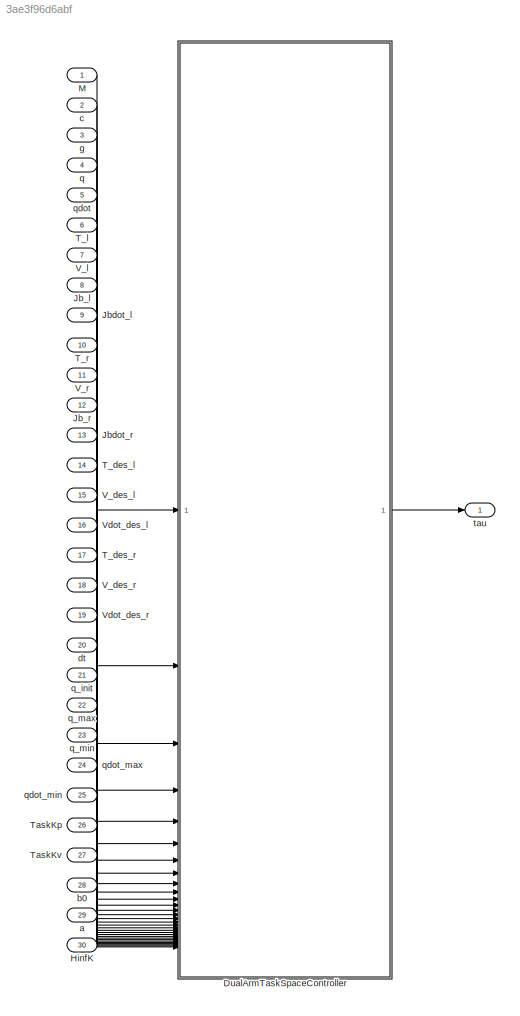
MODEL slx_3ae3f96d6abf
KIND model
CONFIG AbsTol = auto
CONFIG EnableMultiTasking = off
CONFIG FixedStep = 0.001
CONFIG MaxStep = auto
CONFIG MinStep = auto
CONFIG RelTol = 1e-3
CONFIG SampleTimeConstraint = Unconstrained
CONFIG SolverName = FixedStepDiscrete
CONFIG StartTime = 0.0
CONFIG StopTime = Inf
WORKSPACE source: mxarray member
WORKSPACE robot: robotics.RigidBodyTree (value not decoded)
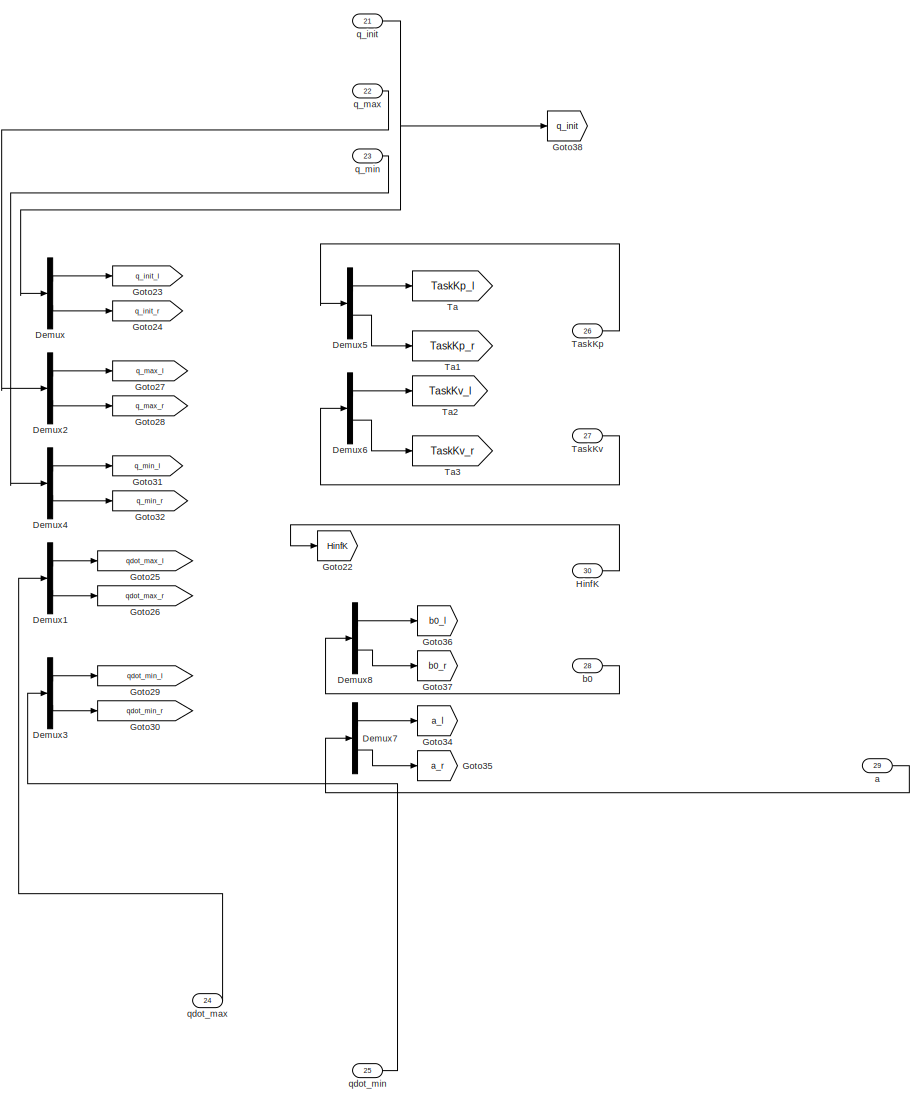
[diagram: DualArmTaskSpaceController - part 1/5, top right region]
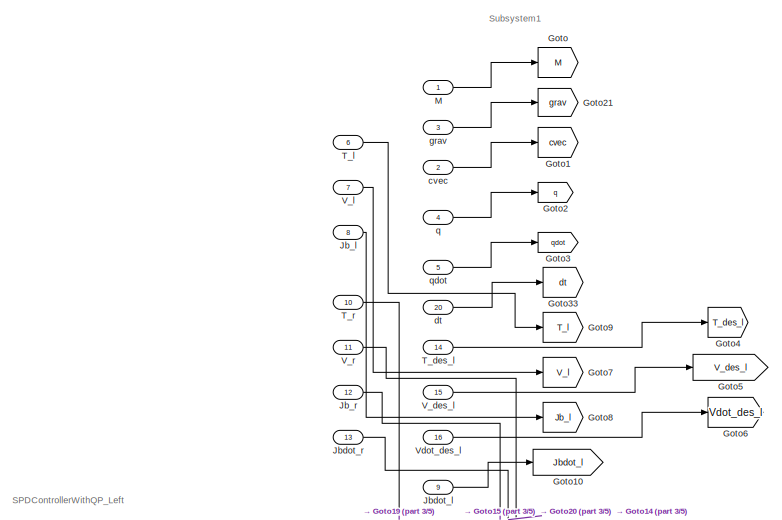
[diagram: DualArmTaskSpaceController - part 2/5, top left region]
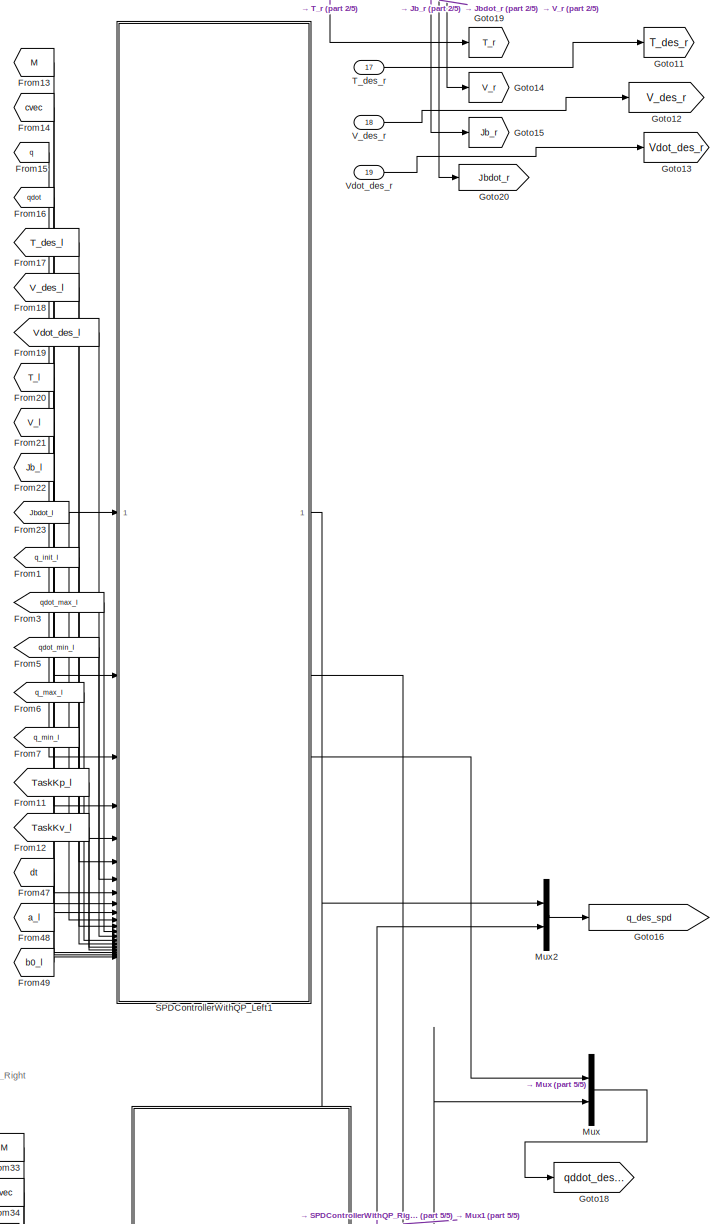
[diagram: DualArmTaskSpaceController - part 3/5, middle left region]
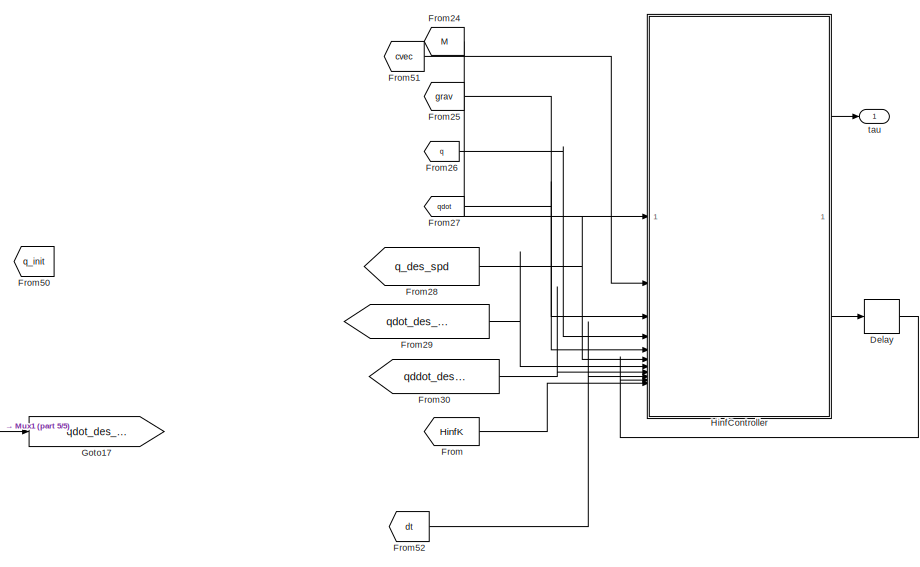
[diagram: DualArmTaskSpaceController - part 4/5, bottom right region]
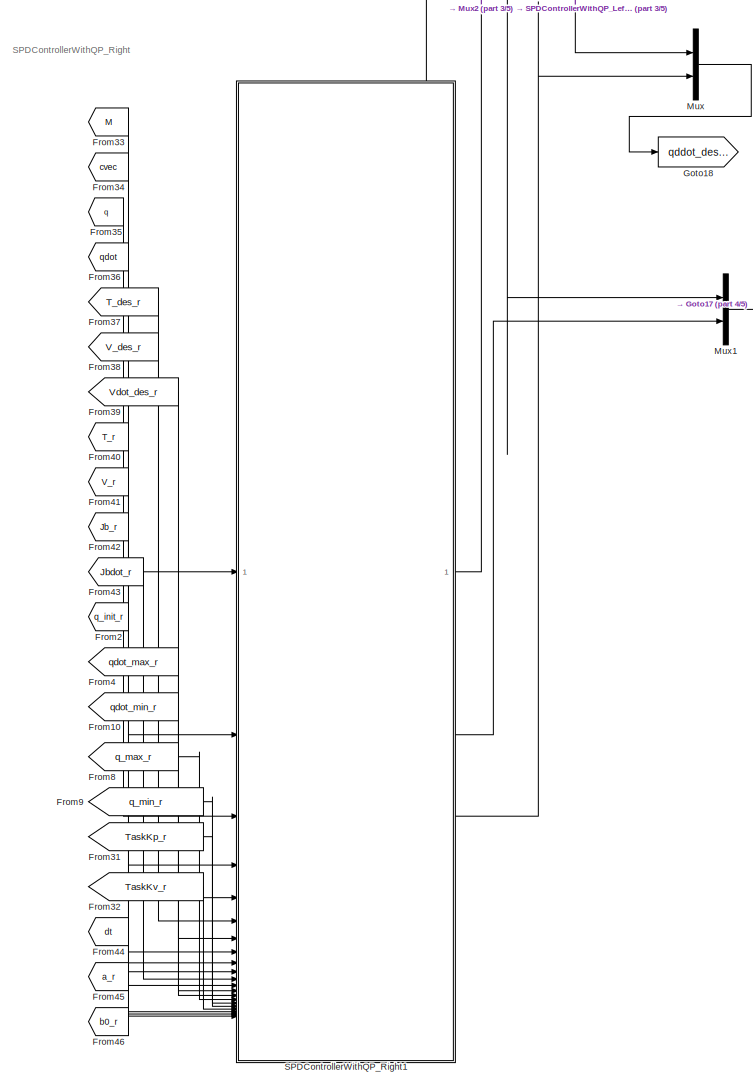
[diagram: DualArmTaskSpaceController - part 5/5, bottom left region]
BLOCK [SubSystem] DualArmTaskSpaceController
BLOCK [Delay] DualArmTaskSpaceController/Delay
  DelayLength = 1
  InputPortMap = u0
BLOCK [Demux] DualArmTaskSpaceController/Demux
  Outputs = 2
BLOCK [Demux] DualArmTaskSpaceController/Demux1
  Outputs = 2
BLOCK [Demux] DualArmTaskSpaceController/Demux2
  Outputs = 2
BLOCK [Demux] DualArmTaskSpaceController/Demux3
  Outputs = 2
BLOCK [Demux] DualArmTaskSpaceController/Demux4
  Outputs = 2
BLOCK [Demux] DualArmTaskSpaceController/Demux5
  Outputs = 2
BLOCK [Demux] DualArmTaskSpaceController/Demux6
  Outputs = 2
BLOCK [Demux] DualArmTaskSpaceController/Demux7
  Outputs = 2
BLOCK [Demux] DualArmTaskSpaceController/Demux8
  Outputs = 2
BLOCK [From] DualArmTaskSpaceController/From
  GotoTag = HinfK
BLOCK [From] DualArmTaskSpaceController/From1
  GotoTag = q_init_l
BLOCK [From] DualArmTaskSpaceController/From10
  GotoTag = qdot_min_r
BLOCK [From] DualArmTaskSpaceController/From11
  GotoTag = TaskKp_l
BLOCK [From] DualArmTaskSpaceController/From12
  GotoTag = TaskKv_l
BLOCK [From] DualArmTaskSpaceController/From13
  GotoTag = M
BLOCK [From] DualArmTaskSpaceController/From14
  GotoTag = cvec
BLOCK [From] DualArmTaskSpaceController/From15
  GotoTag = q
BLOCK [From] DualArmTaskSpaceController/From16
  GotoTag = qdot
BLOCK [From] DualArmTaskSpaceController/From17
  GotoTag = T_des_l
BLOCK [From] DualArmTaskSpaceController/From18
  GotoTag = V_des_l
BLOCK [From] DualArmTaskSpaceController/From19
  GotoTag = Vdot_des_l
BLOCK [From] DualArmTaskSpaceController/From2
  GotoTag = q_init_r
BLOCK [From] DualArmTaskSpaceController/From20
  GotoTag = T_l
BLOCK [From] DualArmTaskSpaceController/From21
  GotoTag = V_l
BLOCK [From] DualArmTaskSpaceController/From22
  GotoTag = Jb_l
BLOCK [From] DualArmTaskSpaceController/From23
  GotoTag = Jbdot_l
BLOCK [From] DualArmTaskSpaceController/From24
  GotoTag = M
BLOCK [From] DualArmTaskSpaceController/From25
  GotoTag = grav
BLOCK [From] DualArmTaskSpaceController/From26
  GotoTag = q
BLOCK [From] DualArmTaskSpaceController/From27
  GotoTag = qdot
BLOCK [From] DualArmTaskSpaceController/From28
  GotoTag = q_des_spd
BLOCK [From] DualArmTaskSpaceController/From29
  GotoTag = qdot_des_spd
BLOCK [From] DualArmTaskSpaceController/From3
  GotoTag = qdot_max_l
BLOCK [From] DualArmTaskSpaceController/From30
  GotoTag = qddot_des_spd
BLOCK [From] DualArmTaskSpaceController/From31
  GotoTag = TaskKp_r
BLOCK [From] DualArmTaskSpaceController/From32
  GotoTag = TaskKv_r
BLOCK [From] DualArmTaskSpaceController/From33
  GotoTag = M
BLOCK [From] DualArmTaskSpaceController/From34
  GotoTag = cvec
BLOCK [From] DualArmTaskSpaceController/From35
  GotoTag = q
BLOCK [From] DualArmTaskSpaceController/From36
  GotoTag = qdot
BLOCK [From] DualArmTaskSpaceController/From37
  GotoTag = T_des_r
BLOCK [From] DualArmTaskSpaceController/From38
  GotoTag = V_des_r
BLOCK [From] DualArmTaskSpaceController/From39
  GotoTag = Vdot_des_r
BLOCK [From] DualArmTaskSpaceController/From4
  GotoTag = qdot_max_r
BLOCK [From] DualArmTaskSpaceController/From40
  GotoTag = T_r
BLOCK [From] DualArmTaskSpaceController/From41
  GotoTag = V_r
BLOCK [From] DualArmTaskSpaceController/From42
  GotoTag = Jb_r
BLOCK [From] DualArmTaskSpaceController/From43
  GotoTag = Jbdot_r
BLOCK [From] DualArmTaskSpaceController/From44
  GotoTag = dt
BLOCK [From] DualArmTaskSpaceController/From45
  GotoTag = a_r
BLOCK [From] DualArmTaskSpaceController/From46
  GotoTag = b0_r
BLOCK [From] DualArmTaskSpaceController/From47
  GotoTag = dt
BLOCK [From] DualArmTaskSpaceController/From48
  GotoTag = a_l
BLOCK [From] DualArmTaskSpaceController/From49
  GotoTag = b0_l
BLOCK [From] DualArmTaskSpaceController/From5
  GotoTag = qdot_min_l
BLOCK [From] DualArmTaskSpaceController/From50
  GotoTag = q_init
BLOCK [From] DualArmTaskSpaceController/From51
  GotoTag = cvec
BLOCK [From] DualArmTaskSpaceController/From52
  GotoTag = dt
BLOCK [From] DualArmTaskSpaceController/From6
  GotoTag = q_max_l
BLOCK [From] DualArmTaskSpaceController/From7
  GotoTag = q_min_l
BLOCK [From] DualArmTaskSpaceController/From8
  GotoTag = q_max_r
BLOCK [From] DualArmTaskSpaceController/From9
  GotoTag = q_min_r
BLOCK [Goto] DualArmTaskSpaceController/Goto
  GotoTag = M
BLOCK [Goto] DualArmTaskSpaceController/Goto1
  GotoTag = cvec
BLOCK [Goto] DualArmTaskSpaceController/Goto10
  GotoTag = Jbdot_l
BLOCK [Goto] DualArmTaskSpaceController/Goto11
  GotoTag = T_des_r
BLOCK [Goto] DualArmTaskSpaceController/Goto12
  GotoTag = V_des_r
BLOCK [Goto] DualArmTaskSpaceController/Goto13
  GotoTag = Vdot_des_r
BLOCK [Goto] DualArmTaskSpaceController/Goto14
  GotoTag = V_r
BLOCK [Goto] DualArmTaskSpaceController/Goto15
  GotoTag = Jb_r
BLOCK [Goto] DualArmTaskSpaceController/Goto16
  GotoTag = q_des_spd
BLOCK [Goto] DualArmTaskSpaceController/Goto17
  GotoTag = qdot_des_spd
BLOCK [Goto] DualArmTaskSpaceController/Goto18
  GotoTag = qddot_des_spd
BLOCK [Goto] DualArmTaskSpaceController/Goto19
  GotoTag = T_r
BLOCK [Goto] DualArmTaskSpaceController/Goto2
  GotoTag = q
BLOCK [Goto] DualArmTaskSpaceController/Goto20
  GotoTag = Jbdot_r
BLOCK [Goto] DualArmTaskSpaceController/Goto21
  GotoTag = grav
BLOCK [Goto] DualArmTaskSpaceController/Goto22
  GotoTag = HinfK
BLOCK [Goto] DualArmTaskSpaceController/Goto23
  GotoTag = q_init_l
BLOCK [Goto] DualArmTaskSpaceController/Goto24
  GotoTag = q_init_r
BLOCK [Goto] DualArmTaskSpaceController/Goto25
  GotoTag = qdot_max_l
BLOCK [Goto] DualArmTaskSpaceController/Goto26
  GotoTag = qdot_max_r
BLOCK [Goto] DualArmTaskSpaceController/Goto27
  GotoTag = q_max_l
BLOCK [Goto] DualArmTaskSpaceController/Goto28
  GotoTag = q_max_r
BLOCK [Goto] DualArmTaskSpaceController/Goto29
  GotoTag = qdot_min_l
BLOCK [Goto] DualArmTaskSpaceController/Goto3
  GotoTag = qdot
BLOCK [Goto] DualArmTaskSpaceController/Goto30
  GotoTag = qdot_min_r
BLOCK [Goto] DualArmTaskSpaceController/Goto31
  GotoTag = q_min_l
BLOCK [Goto] DualArmTaskSpaceController/Goto32
  GotoTag = q_min_r
BLOCK [Goto] DualArmTaskSpaceController/Goto33
  GotoTag = dt
BLOCK [Goto] DualArmTaskSpaceController/Goto34
  GotoTag = a_l
BLOCK [Goto] DualArmTaskSpaceController/Goto35
  GotoTag = a_r
BLOCK [Goto] DualArmTaskSpaceController/Goto36
  GotoTag = b0_l
BLOCK [Goto] DualArmTaskSpaceController/Goto37
  GotoTag = b0_r
BLOCK [Goto] DualArmTaskSpaceController/Goto38
  GotoTag = q_init
BLOCK [Goto] DualArmTaskSpaceController/Goto4
  GotoTag = T_des_l
BLOCK [Goto] DualArmTaskSpaceController/Goto5
  GotoTag = V_des_l
BLOCK [Goto] DualArmTaskSpaceController/Goto6
  GotoTag = Vdot_des_l
BLOCK [Goto] DualArmTaskSpaceController/Goto7
  GotoTag = V_l
BLOCK [Goto] DualArmTaskSpaceController/Goto8
  GotoTag = Jb_l
BLOCK [Goto] DualArmTaskSpaceController/Goto9
  GotoTag = T_l
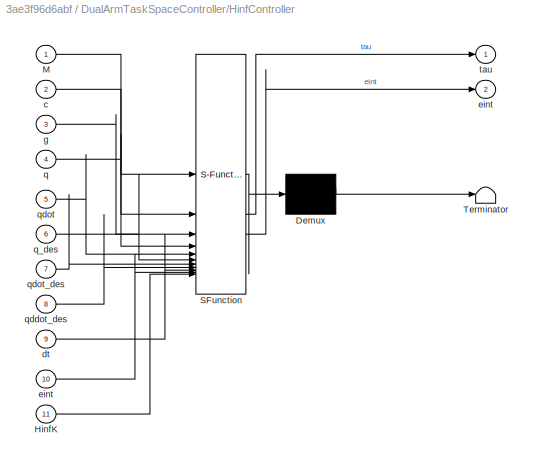
BLOCK [SubSystem] DualArmTaskSpaceController/HinfController
  ErrorFcn = Stateflow.Translate.translate
  PermitHierarchicalResolution = ExplicitOnly
  SFBlockType = MATLAB Function
  TreatAsAtomicUnit = on
BLOCK [Demux] DualArmTaskSpaceController/HinfController/ Demux 
  Outputs = 1
BLOCK [S-Function] DualArmTaskSpaceController/HinfController/ SFunction 
  EnableBusSupport = on
  FunctionName = sf_sfun
  PortCounts = [11 3]
  SFcnIsStateOwnerBlock = off
  SFunctionDeploymentMode = off
  Tag = Stateflow S-Function 2
BLOCK [Terminator] DualArmTaskSpaceController/HinfController/ Terminator 
BLOCK [Inport] DualArmTaskSpaceController/HinfController/HinfK
  Port = 11
BLOCK [Inport] DualArmTaskSpaceController/HinfController/M
BLOCK [Inport] DualArmTaskSpaceController/HinfController/c
  Port = 2
BLOCK [Inport] DualArmTaskSpaceController/HinfController/dt
  Port = 9
BLOCK [Outport] DualArmTaskSpaceController/HinfController/eint
  Port = 2
BLOCK [Inport] DualArmTaskSpaceController/HinfController/eint 
  Port = 10
BLOCK [Inport] DualArmTaskSpaceController/HinfController/g
  Port = 3
BLOCK [Inport] DualArmTaskSpaceController/HinfController/q
  Port = 4
BLOCK [Inport] DualArmTaskSpaceController/HinfController/q_des
  Port = 6
BLOCK [Inport] DualArmTaskSpaceController/HinfController/qddot_des
  Port = 8
BLOCK [Inport] DualArmTaskSpaceController/HinfController/qdot
  Port = 5
BLOCK [Inport] DualArmTaskSpaceController/HinfController/qdot_des
  Port = 7
BLOCK [Outport] DualArmTaskSpaceController/HinfController/tau
BLOCK [Inport] DualArmTaskSpaceController/HinfK
  Port = 30
BLOCK [Inport] DualArmTaskSpaceController/Jb_l
  Port = 8
BLOCK [Inport] DualArmTaskSpaceController/Jb_r
  Port = 12
BLOCK [Inport] DualArmTaskSpaceController/Jbdot_l
  Port = 9
BLOCK [Inport] DualArmTaskSpaceController/Jbdot_r
  Port = 13
BLOCK [Inport] DualArmTaskSpaceController/M
BLOCK [Mux] DualArmTaskSpaceController/Mux
  DisplayOption = bar
  Inputs = 2
BLOCK [Mux] DualArmTaskSpaceController/Mux1
  DisplayOption = bar
  Inputs = 2
BLOCK [Mux] DualArmTaskSpaceController/Mux2
  DisplayOption = bar
  Inputs = 2
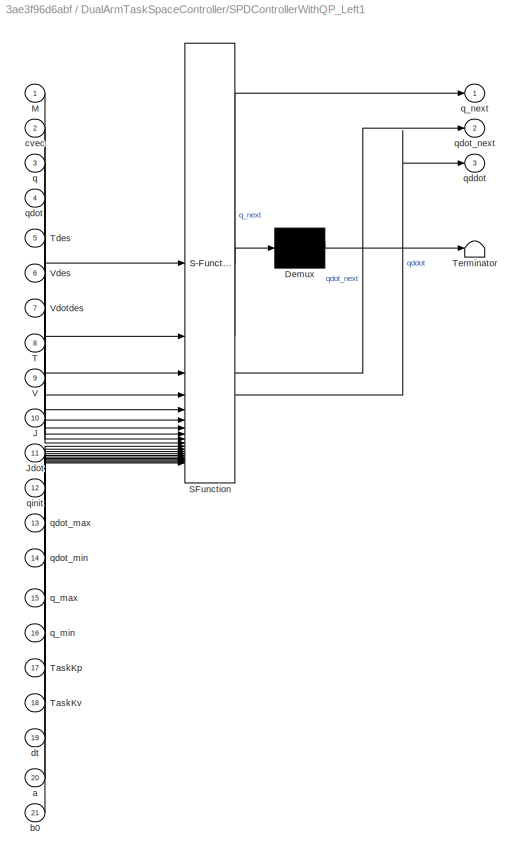
BLOCK [SubSystem] DualArmTaskSpaceController/SPDControllerWithQP_Left1
  ErrorFcn = Stateflow.Translate.translate
  PermitHierarchicalResolution = ExplicitOnly
  SFBlockType = MATLAB Function
  TreatAsAtomicUnit = on
BLOCK [Demux] DualArmTaskSpaceController/SPDControllerWithQP_Left1/ Demux 
  Outputs = 1
BLOCK [S-Function] DualArmTaskSpaceController/SPDControllerWithQP_Left1/ SFunction 
  EnableBusSupport = on
  FunctionName = sf_sfun
  PortCounts = [21 4]
  SFcnIsStateOwnerBlock = off
  SFunctionDeploymentMode = off
  Tag = Stateflow S-Function 18
BLOCK [Terminator] DualArmTaskSpaceController/SPDControllerWithQP_Left1/ Terminator 
BLOCK [Inport] DualArmTaskSpaceController/SPDControllerWithQP_Left1/J
  Port = 10
BLOCK [Inport] DualArmTaskSpaceController/SPDControllerWithQP_Left1/Jdot
  Port = 11
BLOCK [Inport] DualArmTaskSpaceController/SPDControllerWithQP_Left1/M
BLOCK [Inport] DualArmTaskSpaceController/SPDControllerWithQP_Left1/T
  Port = 8
BLOCK [Inport] DualArmTaskSpaceController/SPDControllerWithQP_Left1/TaskKp
  Port = 17
BLOCK [Inport] DualArmTaskSpaceController/SPDControllerWithQP_Left1/TaskKv
  Port = 18
BLOCK [Inport] DualArmTaskSpaceController/SPDControllerWithQP_Left1/Tdes
  Port = 5
BLOCK [Inport] DualArmTaskSpaceController/SPDControllerWithQP_Left1/V
  Port = 9
BLOCK [Inport] DualArmTaskSpaceController/SPDControllerWithQP_Left1/Vdes
  Port = 6
BLOCK [Inport] DualArmTaskSpaceController/SPDControllerWithQP_Left1/Vdotdes
  Port = 7
BLOCK [Inport] DualArmTaskSpaceController/SPDControllerWithQP_Left1/a
  Port = 20
BLOCK [Inport] DualArmTaskSpaceController/SPDControllerWithQP_Left1/b0
  Port = 21
BLOCK [Inport] DualArmTaskSpaceController/SPDControllerWithQP_Left1/cvec
  Port = 2
BLOCK [Inport] DualArmTaskSpaceController/SPDControllerWithQP_Left1/dt
  Port = 19
BLOCK [Inport] DualArmTaskSpaceController/SPDControllerWithQP_Left1/q
  Port = 3
BLOCK [Inport] DualArmTaskSpaceController/SPDControllerWithQP_Left1/q_max
  Port = 15
BLOCK [Inport] DualArmTaskSpaceController/SPDControllerWithQP_Left1/q_min
  Port = 16
BLOCK [Outport] DualArmTaskSpaceController/SPDControllerWithQP_Left1/q_next
BLOCK [Outport] DualArmTaskSpaceController/SPDControllerWithQP_Left1/qddot
  Port = 3
BLOCK [Inport] DualArmTaskSpaceController/SPDControllerWithQP_Left1/qdot
  Port = 4
BLOCK [Inport] DualArmTaskSpaceController/SPDControllerWithQP_Left1/qdot_max
  Port = 13
BLOCK [Inport] DualArmTaskSpaceController/SPDControllerWithQP_Left1/qdot_min
  Port = 14
BLOCK [Outport] DualArmTaskSpaceController/SPDControllerWithQP_Left1/qdot_next
  Port = 2
BLOCK [Inport] DualArmTaskSpaceController/SPDControllerWithQP_Left1/qinit
  Port = 12
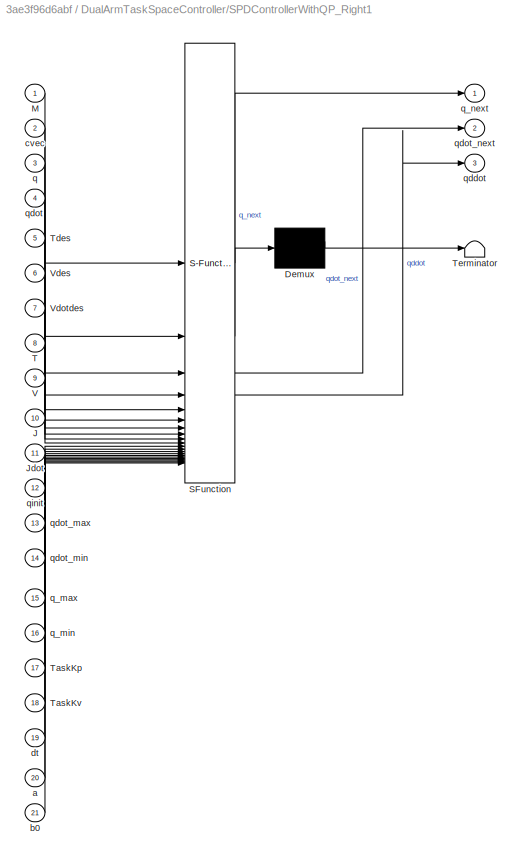
BLOCK [SubSystem] DualArmTaskSpaceController/SPDControllerWithQP_Right1
  ErrorFcn = Stateflow.Translate.translate
  PermitHierarchicalResolution = ExplicitOnly
  SFBlockType = MATLAB Function
  TreatAsAtomicUnit = on
BLOCK [Demux] DualArmTaskSpaceController/SPDControllerWithQP_Right1/ Demux 
  Outputs = 1
BLOCK [S-Function] DualArmTaskSpaceController/SPDControllerWithQP_Right1/ SFunction 
  EnableBusSupport = on
  FunctionName = sf_sfun
  PortCounts = [21 4]
  SFcnIsStateOwnerBlock = off
  SFunctionDeploymentMode = off
  Tag = Stateflow S-Function 28
BLOCK [Terminator] DualArmTaskSpaceController/SPDControllerWithQP_Right1/ Terminator 
BLOCK [Inport] DualArmTaskSpaceController/SPDControllerWithQP_Right1/J
  Port = 10
BLOCK [Inport] DualArmTaskSpaceController/SPDControllerWithQP_Right1/Jdot
  Port = 11
BLOCK [Inport] DualArmTaskSpaceController/SPDControllerWithQP_Right1/M
BLOCK [Inport] DualArmTaskSpaceController/SPDControllerWithQP_Right1/T
  Port = 8
BLOCK [Inport] DualArmTaskSpaceController/SPDControllerWithQP_Right1/TaskKp
  Port = 17
BLOCK [Inport] DualArmTaskSpaceController/SPDControllerWithQP_Right1/TaskKv
  Port = 18
BLOCK [Inport] DualArmTaskSpaceController/SPDControllerWithQP_Right1/Tdes
  Port = 5
BLOCK [Inport] DualArmTaskSpaceController/SPDControllerWithQP_Right1/V
  Port = 9
BLOCK [Inport] DualArmTaskSpaceController/SPDControllerWithQP_Right1/Vdes
  Port = 6
BLOCK [Inport] DualArmTaskSpaceController/SPDControllerWithQP_Right1/Vdotdes
  Port = 7
BLOCK [Inport] DualArmTaskSpaceController/SPDControllerWithQP_Right1/a
  Port = 20
BLOCK [Inport] DualArmTaskSpaceController/SPDControllerWithQP_Right1/b0
  Port = 21
BLOCK [Inport] DualArmTaskSpaceController/SPDControllerWithQP_Right1/cvec
  Port = 2
BLOCK [Inport] DualArmTaskSpaceController/SPDControllerWithQP_Right1/dt
  Port = 19
BLOCK [Inport] DualArmTaskSpaceController/SPDControllerWithQP_Right1/q
  Port = 3
BLOCK [Inport] DualArmTaskSpaceController/SPDControllerWithQP_Right1/q_max
  Port = 15
BLOCK [Inport] DualArmTaskSpaceController/SPDControllerWithQP_Right1/q_min
  Port = 16
BLOCK [Outport] DualArmTaskSpaceController/SPDControllerWithQP_Right1/q_next
BLOCK [Outport] DualArmTaskSpaceController/SPDControllerWithQP_Right1/qddot
  Port = 3
BLOCK [Inport] DualArmTaskSpaceController/SPDControllerWithQP_Right1/qdot
  Port = 4
BLOCK [Inport] DualArmTaskSpaceController/SPDControllerWithQP_Right1/qdot_max
  Port = 13
BLOCK [Inport] DualArmTaskSpaceController/SPDControllerWithQP_Right1/qdot_min
  Port = 14
BLOCK [Outport] DualArmTaskSpaceController/SPDControllerWithQP_Right1/qdot_next
  Port = 2
BLOCK [Inport] DualArmTaskSpaceController/SPDControllerWithQP_Right1/qinit
  Port = 12
BLOCK [Inport] DualArmTaskSpaceController/T_des_l
  Port = 14
BLOCK [Inport] DualArmTaskSpaceController/T_des_r
  Port = 17
BLOCK [Inport] DualArmTaskSpaceController/T_l
  Port = 6
BLOCK [Inport] DualArmTaskSpaceController/T_r
  Port = 10
BLOCK [Goto] DualArmTaskSpaceController/Ta
  GotoTag = TaskKp_l
BLOCK [Goto] DualArmTaskSpaceController/Ta1
  GotoTag = TaskKp_r
BLOCK [Goto] DualArmTaskSpaceController/Ta2
  GotoTag = TaskKv_l
BLOCK [Goto] DualArmTaskSpaceController/Ta3
  GotoTag = TaskKv_r
BLOCK [Inport] DualArmTaskSpaceController/TaskKp
  Port = 26
BLOCK [Inport] DualArmTaskSpaceController/TaskKv
  Port = 27
BLOCK [Inport] DualArmTaskSpaceController/V_des_l
  Port = 15
BLOCK [Inport] DualArmTaskSpaceController/V_des_r
  Port = 18
BLOCK [Inport] DualArmTaskSpaceController/V_l
  Port = 7
BLOCK [Inport] DualArmTaskSpaceController/V_r
  Port = 11
BLOCK [Inport] DualArmTaskSpaceController/Vdot_des_l
  Port = 16
BLOCK [Inport] DualArmTaskSpaceController/Vdot_des_r
  Port = 19
BLOCK [Inport] DualArmTaskSpaceController/a
  Port = 29
BLOCK [Inport] DualArmTaskSpaceController/b0
  Port = 28
BLOCK [Inport] DualArmTaskSpaceController/cvec
  Port = 2
BLOCK [Inport] DualArmTaskSpaceController/dt
  Port = 20
BLOCK [Inport] DualArmTaskSpaceController/grav
  Port = 3
BLOCK [Inport] DualArmTaskSpaceController/q
  Port = 4
BLOCK [Inport] DualArmTaskSpaceController/q_init
  Port = 21
BLOCK [Inport] DualArmTaskSpaceController/q_max
  Port = 22
BLOCK [Inport] DualArmTaskSpaceController/q_min
  Port = 23
BLOCK [Inport] DualArmTaskSpaceController/qdot
  Port = 5
BLOCK [Inport] DualArmTaskSpaceController/qdot_max
  Port = 24
BLOCK [Inport] DualArmTaskSpaceController/qdot_min
  Port = 25
BLOCK [Outport] DualArmTaskSpaceController/tau
BLOCK [Inport] HinfK
  Port = 30
  PortDimensions = 12
BLOCK [Inport] Jb_l
  Port = 8
  PortDimensions = [6,6]
BLOCK [Inport] Jb_r
  Port = 12
  PortDimensions = [6,6]
BLOCK [Inport] Jbdot_l
  Port = 9
  PortDimensions = [6,6]
BLOCK [Inport] Jbdot_r
  Port = 13
  PortDimensions = [6,6]
BLOCK [Inport] M
  PortDimensions = [12,12]
BLOCK [Inport] T_des_l
  Port = 14
  PortDimensions = [4,4]
BLOCK [Inport] T_des_r
  Port = 17
  PortDimensions = [4,4]
BLOCK [Inport] T_l
  Port = 6
  PortDimensions = [4,4]
BLOCK [Inport] T_r
  Port = 10
  PortDimensions = [4,4]
BLOCK [Inport] TaskKp
  Port = 26
  PortDimensions = 12
BLOCK [Inport] TaskKv
  Port = 27
  PortDimensions = 12
BLOCK [Inport] V_des_l
  Port = 15
  PortDimensions = 6
BLOCK [Inport] V_des_r
  Port = 18
  PortDimensions = 6
BLOCK [Inport] V_l
  Port = 7
  PortDimensions = 6
BLOCK [Inport] V_r
  Port = 11
  PortDimensions = 6
BLOCK [Inport] Vdot_des_l
  Port = 16
  PortDimensions = 6
BLOCK [Inport] Vdot_des_r
  Port = 19
  PortDimensions = 6
BLOCK [Inport] a
  Port = 29
  PortDimensions = 2
BLOCK [Inport] b0
  Port = 28
  PortDimensions = 2
BLOCK [Inport] c
  Port = 2
  PortDimensions = 12
BLOCK [Inport] dt
  Port = 20
BLOCK [Inport] g
  Port = 3
  PortDimensions = 12
BLOCK [Inport] q
  Port = 4
  PortDimensions = 12
BLOCK [Inport] q_init
  Port = 21
  PortDimensions = 12
BLOCK [Inport] q_max
  Port = 22
  PortDimensions = 12
BLOCK [Inport] q_min
  Port = 23
  PortDimensions = 12
BLOCK [Inport] qdot
  Port = 5
  PortDimensions = 12
BLOCK [Inport] qdot_max
  Port = 24
  PortDimensions = 12
BLOCK [Inport] qdot_min
  Port = 25
  PortDimensions = 12
BLOCK [Outport] tau
ANNOTATION DualArmTaskSpaceController: SPDControllerWithQP_Left
ANNOTATION DualArmTaskSpaceController: SPDControllerWithQP_Right
ANNOTATION DualArmTaskSpaceController: Subsystem1
LINE DualArmTaskSpaceController/Delay:1 -> DualArmTaskSpaceController/HinfController:10
LINE DualArmTaskSpaceController/Demux1:1 -> DualArmTaskSpaceController/Goto25:1
LINE DualArmTaskSpaceController/Demux1:2 -> DualArmTaskSpaceController/Goto26:1
LINE DualArmTaskSpaceController/Demux2:1 -> DualArmTaskSpaceController/Goto27:1
LINE DualArmTaskSpaceController/Demux2:2 -> DualArmTaskSpaceController/Goto28:1
LINE DualArmTaskSpaceController/Demux3:1 -> DualArmTaskSpaceController/Goto29:1
LINE DualArmTaskSpaceController/Demux3:2 -> DualArmTaskSpaceController/Goto30:1
LINE DualArmTaskSpaceController/Demux4:1 -> DualArmTaskSpaceController/Goto31:1
LINE DualArmTaskSpaceController/Demux4:2 -> DualArmTaskSpaceController/Goto32:1
LINE DualArmTaskSpaceController/Demux5:1 -> DualArmTaskSpaceController/Ta:1
LINE DualArmTaskSpaceController/Demux5:2 -> DualArmTaskSpaceController/Ta1:1
LINE DualArmTaskSpaceController/Demux6:1 -> DualArmTaskSpaceController/Ta2:1
LINE DualArmTaskSpaceController/Demux6:2 -> DualArmTaskSpaceController/Ta3:1
LINE DualArmTaskSpaceController/Demux7:1 -> DualArmTaskSpaceController/Goto34:1
LINE DualArmTaskSpaceController/Demux7:2 -> DualArmTaskSpaceController/Goto35:1
LINE DualArmTaskSpaceController/Demux8:1 -> DualArmTaskSpaceController/Goto36:1
LINE DualArmTaskSpaceController/Demux8:2 -> DualArmTaskSpaceController/Goto37:1
LINE DualArmTaskSpaceController/Demux:1 -> DualArmTaskSpaceController/Goto23:1
LINE DualArmTaskSpaceController/Demux:2 -> DualArmTaskSpaceController/Goto24:1
LINE DualArmTaskSpaceController/From10:1 -> DualArmTaskSpaceController/SPDControllerWithQP_Right1:14
LINE DualArmTaskSpaceController/From11:1 -> DualArmTaskSpaceController/SPDControllerWithQP_Left1:17
LINE DualArmTaskSpaceController/From12:1 -> DualArmTaskSpaceController/SPDControllerWithQP_Left1:18
LINE DualArmTaskSpaceController/From13:1 -> DualArmTaskSpaceController/SPDControllerWithQP_Left1:1
LINE DualArmTaskSpaceController/From14:1 -> DualArmTaskSpaceController/SPDControllerWithQP_Left1:2
LINE DualArmTaskSpaceController/From15:1 -> DualArmTaskSpaceController/SPDControllerWithQP_Left1:3
LINE DualArmTaskSpaceController/From16:1 -> DualArmTaskSpaceController/SPDControllerWithQP_Left1:4
LINE DualArmTaskSpaceController/From17:1 -> DualArmTaskSpaceController/SPDControllerWithQP_Left1:5
LINE DualArmTaskSpaceController/From18:1 -> DualArmTaskSpaceController/SPDControllerWithQP_Left1:6
LINE DualArmTaskSpaceController/From19:1 -> DualArmTaskSpaceController/SPDControllerWithQP_Left1:7
LINE DualArmTaskSpaceController/From1:1 -> DualArmTaskSpaceController/SPDControllerWithQP_Left1:12
LINE DualArmTaskSpaceController/From20:1 -> DualArmTaskSpaceController/SPDControllerWithQP_Left1:8
LINE DualArmTaskSpaceController/From21:1 -> DualArmTaskSpaceController/SPDControllerWithQP_Left1:9
LINE DualArmTaskSpaceController/From22:1 -> DualArmTaskSpaceController/SPDControllerWithQP_Left1:10
LINE DualArmTaskSpaceController/From23:1 -> DualArmTaskSpaceController/SPDControllerWithQP_Left1:11
LINE DualArmTaskSpaceController/From24:1 -> DualArmTaskSpaceController/HinfController:1
LINE DualArmTaskSpaceController/From25:1 -> DualArmTaskSpaceController/HinfController:3
LINE DualArmTaskSpaceController/From26:1 -> DualArmTaskSpaceController/HinfController:4
LINE DualArmTaskSpaceController/From27:1 -> DualArmTaskSpaceController/HinfController:5
LINE DualArmTaskSpaceController/From28:1 -> DualArmTaskSpaceController/HinfController:6
LINE DualArmTaskSpaceController/From29:1 -> DualArmTaskSpaceController/HinfController:7
LINE DualArmTaskSpaceController/From2:1 -> DualArmTaskSpaceController/SPDControllerWithQP_Right1:12
LINE DualArmTaskSpaceController/From30:1 -> DualArmTaskSpaceController/HinfController:8
LINE DualArmTaskSpaceController/From31:1 -> DualArmTaskSpaceController/SPDControllerWithQP_Right1:17
LINE DualArmTaskSpaceController/From32:1 -> DualArmTaskSpaceController/SPDControllerWithQP_Right1:18
LINE DualArmTaskSpaceController/From33:1 -> DualArmTaskSpaceController/SPDControllerWithQP_Right1:1
LINE DualArmTaskSpaceController/From34:1 -> DualArmTaskSpaceController/SPDControllerWithQP_Right1:2
LINE DualArmTaskSpaceController/From35:1 -> DualArmTaskSpaceController/SPDControllerWithQP_Right1:3
LINE DualArmTaskSpaceController/From36:1 -> DualArmTaskSpaceController/SPDControllerWithQP_Right1:4
LINE DualArmTaskSpaceController/From37:1 -> DualArmTaskSpaceController/SPDControllerWithQP_Right1:5
LINE DualArmTaskSpaceController/From38:1 -> DualArmTaskSpaceController/SPDControllerWithQP_Right1:6
LINE DualArmTaskSpaceController/From39:1 -> DualArmTaskSpaceController/SPDControllerWithQP_Right1:7
LINE DualArmTaskSpaceController/From3:1 -> DualArmTaskSpaceController/SPDControllerWithQP_Left1:13
LINE DualArmTaskSpaceController/From40:1 -> DualArmTaskSpaceController/SPDControllerWithQP_Right1:8
LINE DualArmTaskSpaceController/From41:1 -> DualArmTaskSpaceController/SPDControllerWithQP_Right1:9
LINE DualArmTaskSpaceController/From42:1 -> DualArmTaskSpaceController/SPDControllerWithQP_Right1:10
LINE DualArmTaskSpaceController/From43:1 -> DualArmTaskSpaceController/SPDControllerWithQP_Right1:11
LINE DualArmTaskSpaceController/From44:1 -> DualArmTaskSpaceController/SPDControllerWithQP_Right1:19
LINE DualArmTaskSpaceController/From45:1 -> DualArmTaskSpaceController/SPDControllerWithQP_Right1:20
LINE DualArmTaskSpaceController/From46:1 -> DualArmTaskSpaceController/SPDControllerWithQP_Right1:21
LINE DualArmTaskSpaceController/From47:1 -> DualArmTaskSpaceController/SPDControllerWithQP_Left1:19
LINE DualArmTaskSpaceController/From48:1 -> DualArmTaskSpaceController/SPDControllerWithQP_Left1:20
LINE DualArmTaskSpaceController/From49:1 -> DualArmTaskSpaceController/SPDControllerWithQP_Left1:21
LINE DualArmTaskSpaceController/From4:1 -> DualArmTaskSpaceController/SPDControllerWithQP_Right1:13
LINE DualArmTaskSpaceController/From51:1 -> DualArmTaskSpaceController/HinfController:2
LINE DualArmTaskSpaceController/From52:1 -> DualArmTaskSpaceController/HinfController:9
LINE DualArmTaskSpaceController/From5:1 -> DualArmTaskSpaceController/SPDControllerWithQP_Left1:14
LINE DualArmTaskSpaceController/From6:1 -> DualArmTaskSpaceController/SPDControllerWithQP_Left1:15
LINE DualArmTaskSpaceController/From7:1 -> DualArmTaskSpaceController/SPDControllerWithQP_Left1:16
LINE DualArmTaskSpaceController/From8:1 -> DualArmTaskSpaceController/SPDControllerWithQP_Right1:15
LINE DualArmTaskSpaceController/From9:1 -> DualArmTaskSpaceController/SPDControllerWithQP_Right1:16
LINE DualArmTaskSpaceController/From:1 -> DualArmTaskSpaceController/HinfController:11
LINE DualArmTaskSpaceController/HinfController:1 -> DualArmTaskSpaceController/tau:1
LINE DualArmTaskSpaceController/HinfController:2 -> DualArmTaskSpaceController/Delay:1
LINE DualArmTaskSpaceController/HinfK:1 -> DualArmTaskSpaceController/Goto22:1
LINE DualArmTaskSpaceController/Jb_l:1 -> DualArmTaskSpaceController/Goto8:1
LINE DualArmTaskSpaceController/Jb_r:1 -> DualArmTaskSpaceController/Goto15:1
LINE DualArmTaskSpaceController/Jbdot_l:1 -> DualArmTaskSpaceController/Goto10:1
LINE DualArmTaskSpaceController/Jbdot_r:1 -> DualArmTaskSpaceController/Goto20:1
LINE DualArmTaskSpaceController/M:1 -> DualArmTaskSpaceController/Goto:1
LINE DualArmTaskSpaceController/Mux1:1 -> DualArmTaskSpaceController/Goto17:1
LINE DualArmTaskSpaceController/Mux2:1 -> DualArmTaskSpaceController/Goto16:1
LINE DualArmTaskSpaceController/Mux:1 -> DualArmTaskSpaceController/Goto18:1
LINE DualArmTaskSpaceController/SPDControllerWithQP_Left1:1 -> DualArmTaskSpaceController/Mux2:1
LINE DualArmTaskSpaceController/SPDControllerWithQP_Left1:2 -> DualArmTaskSpaceController/Mux1:1
LINE DualArmTaskSpaceController/SPDControllerWithQP_Left1:3 -> DualArmTaskSpaceController/Mux:1
LINE DualArmTaskSpaceController/SPDControllerWithQP_Right1:1 -> DualArmTaskSpaceController/Mux2:2
LINE DualArmTaskSpaceController/SPDControllerWithQP_Right1:2 -> DualArmTaskSpaceController/Mux1:2
LINE DualArmTaskSpaceController/SPDControllerWithQP_Right1:3 -> DualArmTaskSpaceController/Mux:2
LINE DualArmTaskSpaceController/T_des_l:1 -> DualArmTaskSpaceController/Goto4:1
LINE DualArmTaskSpaceController/T_des_r:1 -> DualArmTaskSpaceController/Goto11:1
LINE DualArmTaskSpaceController/T_l:1 -> DualArmTaskSpaceController/Goto9:1
LINE DualArmTaskSpaceController/T_r:1 -> DualArmTaskSpaceController/Goto19:1
LINE DualArmTaskSpaceController/TaskKp:1 -> DualArmTaskSpaceController/Demux5:1
LINE DualArmTaskSpaceController/TaskKv:1 -> DualArmTaskSpaceController/Demux6:1
LINE DualArmTaskSpaceController/V_des_l:1 -> DualArmTaskSpaceController/Goto5:1
LINE DualArmTaskSpaceController/V_des_r:1 -> DualArmTaskSpaceController/Goto12:1
LINE DualArmTaskSpaceController/V_l:1 -> DualArmTaskSpaceController/Goto7:1
LINE DualArmTaskSpaceController/V_r:1 -> DualArmTaskSpaceController/Goto14:1
LINE DualArmTaskSpaceController/Vdot_des_l:1 -> DualArmTaskSpaceController/Goto6:1
LINE DualArmTaskSpaceController/Vdot_des_r:1 -> DualArmTaskSpaceController/Goto13:1
LINE DualArmTaskSpaceController/a:1 -> DualArmTaskSpaceController/Demux7:1
LINE DualArmTaskSpaceController/b0:1 -> DualArmTaskSpaceController/Demux8:1
LINE DualArmTaskSpaceController/cvec:1 -> DualArmTaskSpaceController/Goto1:1
LINE DualArmTaskSpaceController/dt:1 -> DualArmTaskSpaceController/Goto33:1
LINE DualArmTaskSpaceController/grav:1 -> DualArmTaskSpaceController/Goto21:1
LINE DualArmTaskSpaceController/q:1 -> DualArmTaskSpaceController/Goto2:1
NET DualArmTaskSpaceController/q_init:1 -> DualArmTaskSpaceController/Demux:1, DualArmTaskSpaceController/Goto38:1
LINE DualArmTaskSpaceController/q_max:1 -> DualArmTaskSpaceController/Demux2:1
LINE DualArmTaskSpaceController/q_min:1 -> DualArmTaskSpaceController/Demux4:1
LINE DualArmTaskSpaceController/qdot:1 -> DualArmTaskSpaceController/Goto3:1
LINE DualArmTaskSpaceController/qdot_max:1 -> DualArmTaskSpaceController/Demux1:1
LINE DualArmTaskSpaceController/qdot_min:1 -> DualArmTaskSpaceController/Demux3:1
LINE DualArmTaskSpaceController:1 -> tau:1
LINE HinfK:1 -> DualArmTaskSpaceController:30
LINE Jb_l:1 -> DualArmTaskSpaceController:8
LINE Jb_r:1 -> DualArmTaskSpaceController:12
LINE Jbdot_l:1 -> DualArmTaskSpaceController:9
LINE Jbdot_r:1 -> DualArmTaskSpaceController:13
LINE M:1 -> DualArmTaskSpaceController:1
LINE T_des_l:1 -> DualArmTaskSpaceController:14
LINE T_des_r:1 -> DualArmTaskSpaceController:17
LINE T_l:1 -> DualArmTaskSpaceController:6
LINE T_r:1 -> DualArmTaskSpaceController:10
LINE TaskKp:1 -> DualArmTaskSpaceController:26
LINE TaskKv:1 -> DualArmTaskSpaceController:27
LINE V_des_l:1 -> DualArmTaskSpaceController:15
LINE V_des_r:1 -> DualArmTaskSpaceController:18
LINE V_l:1 -> DualArmTaskSpaceController:7
LINE V_r:1 -> DualArmTaskSpaceController:11
LINE Vdot_des_l:1 -> DualArmTaskSpaceController:16
LINE Vdot_des_r:1 -> DualArmTaskSpaceController:19
LINE a:1 -> DualArmTaskSpaceController:29
LINE b0:1 -> DualArmTaskSpaceController:28
LINE c:1 -> DualArmTaskSpaceController:2
LINE dt:1 -> DualArmTaskSpaceController:20
LINE g:1 -> DualArmTaskSpaceController:3
LINE q:1 -> DualArmTaskSpaceController:4
LINE q_init:1 -> DualArmTaskSpaceController:21
LINE q_max:1 -> DualArmTaskSpaceController:22
LINE q_min:1 -> DualArmTaskSpaceController:23
LINE qdot:1 -> DualArmTaskSpaceController:5
LINE qdot_max:1 -> DualArmTaskSpaceController:24
LINE qdot_min:1 -> DualArmTaskSpaceController:25
note: NET lines group one-source signal fan-out (src -> all destinations, sorted); 1:1 wires keep LINE
CHART DualArmTaskSpaceController/HinfController states=1 transitions=1
  STATE_LABEL 'eML_blk_kernel()'
  STATE_LABEL 'SCRIPT:\nfunction [tau,eint] = HinfController(M,c,g,q,qdot,q_des,qdot_des,qddot_des,dt,eint,HinfK)\n\ne = q_des-q;\nedot = qdot_des-qdot;\neint = eint+e.*dt;\nqddot_ref =qddot_des+100*e+20*edot;\n\ntau = M*qddot_ref+c+g+diag(HinfK)*(edot+20*e+100*eint);'
CHART DualArmTaskSpaceController/SPDControllerWithQP_Left1 states=1 transitions=1
  STATE_LABEL 'eML_blk_kernel()'
  STATE_LABEL 'SCRIPT:\nfunction [q_next,qdot_next,qddot] = SPDImplicitEuler(M,cvec,q,qdot,Tdes,Vdes,Vdotdes,T,V,J,Jdot,qinit,qdot_max,qdot_min,q_max,q_min,TaskKp,TaskKv,dt,a,b0)\n    % Tdes(2,4) = Tdes(2,4)+0.3*sin(2*pi*t/5);\n    M = M(1:6,1:6);\n    qdot  = qdot(1:6);\n    q = q(1:6);\n    cvec = cvec(1:6);\n    q_next = q;\n    qdot_next = qdot;\n    % % Tdes(3,4) = Tdes(3,4)+0.5*sin(2*pi*t/5);\n\n    TaskKp = diag(Tas...<+2400ch>'
CHART DualArmTaskSpaceController/SPDControllerWithQP_Right1 states=1 transitions=1
  STATE_LABEL 'eML_blk_kernel()'
  STATE_LABEL 'SCRIPT:\nfunction [q_next,qdot_next,qddot] = SPDImplicitEuler(M,cvec,q,qdot,Tdes,Vdes,Vdotdes,T,V,J,Jdot,qinit,qdot_max,qdot_min,q_max,q_min,TaskKp,TaskKv,dt,a,b0)\n    % Tdes(2,4) = Tdes(2,4)+0.3*sin(2*pi*t/5);\n    M = M(7:end,7:end);\n    qdot  = qdot(7:end);\n    q = q(7:end);\n    q_next = q;\n    cvec = cvec(7:end);\n    qdot_next = qdot;\n\n    % % Tdes(3,4) = Tdes(3,4)+0.5*sin(2*pi*t/5);\n\n    TaskKp...<+2416ch>'
CHART  states=0 transitions=0
CHART  states=0 transitions=0
CHART  states=0 transitions=0
